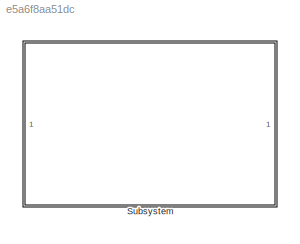
MODEL slx_e5a6f8aa51dc
KIND model
CONFIG AbsTol = auto
CONFIG EnableMultiTasking = off
CONFIG FixedStep = auto
CONFIG MaxStep = auto
CONFIG MinStep = auto
CONFIG RelTol = 1e-3
CONFIG SampleTimeConstraint = Unconstrained
CONFIG SolverName = VariableStepAuto
CONFIG StartTime = 0.0
CONFIG StopTime = 15
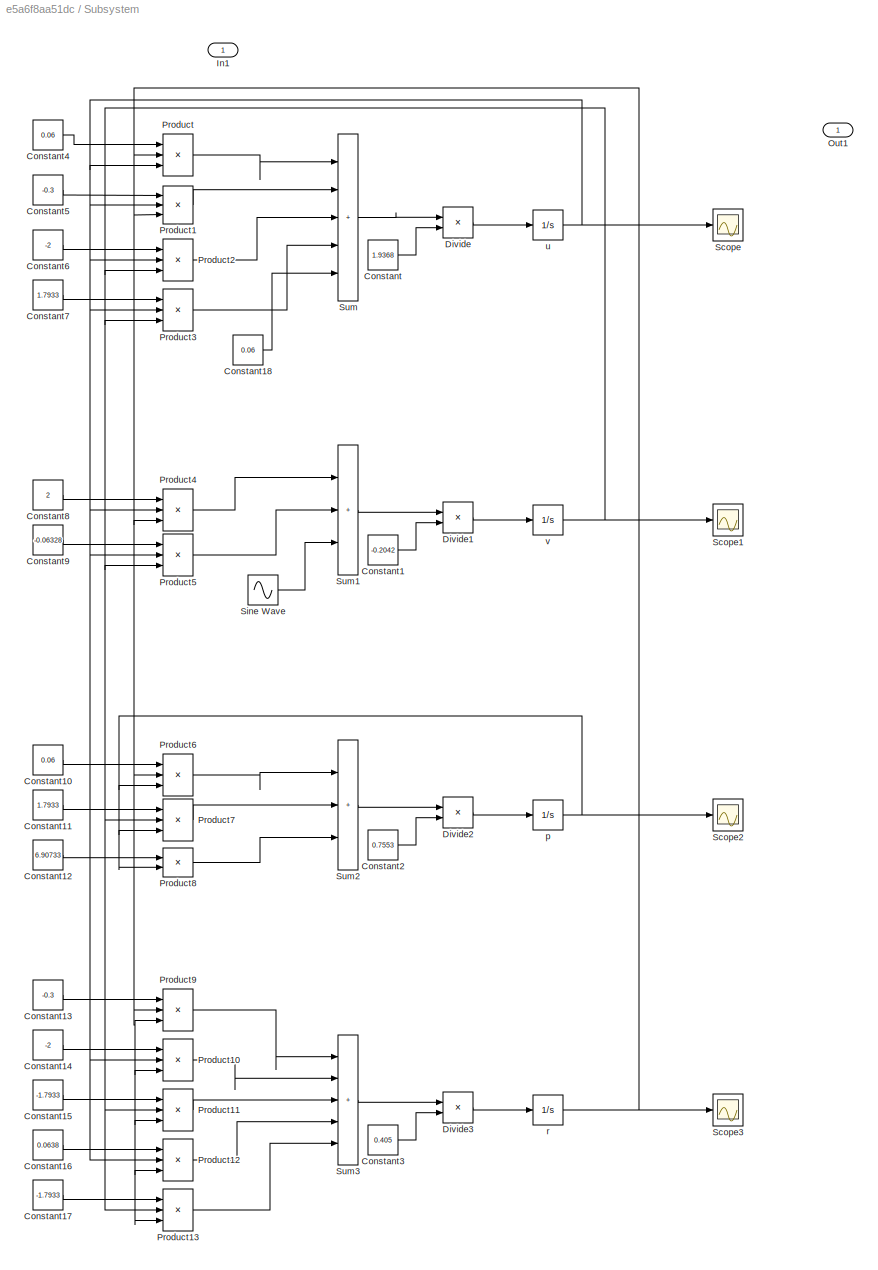
BLOCK [SubSystem] Subsystem
BLOCK [Constant] Subsystem/Constant
  Value = 1.9368
BLOCK [Constant] Subsystem/Constant1
  Value = -0.2042
BLOCK [Constant] Subsystem/Constant10
  Value = 0.06
BLOCK [Constant] Subsystem/Constant11
  Value = 1.7933
BLOCK [Constant] Subsystem/Constant12
  Value = 6.90733
BLOCK [Constant] Subsystem/Constant13
  Value = -0.3
BLOCK [Constant] Subsystem/Constant14
  Value = -2
BLOCK [Constant] Subsystem/Constant15
  Value = -1.7933
BLOCK [Constant] Subsystem/Constant16
  Value = 0.0638
BLOCK [Constant] Subsystem/Constant17
  Value = -1.7933
BLOCK [Constant] Subsystem/Constant18
  Value = 0.06
BLOCK [Constant] Subsystem/Constant2
  Value = 0.7553
BLOCK [Constant] Subsystem/Constant3
  Value = 0.405
BLOCK [Constant] Subsystem/Constant4
  Value = 0.06
BLOCK [Constant] Subsystem/Constant5
  Value = -0.3
BLOCK [Constant] Subsystem/Constant6
  Value = -2
BLOCK [Constant] Subsystem/Constant7
  Value = 1.7933
BLOCK [Constant] Subsystem/Constant8
  Value = 2
BLOCK [Constant] Subsystem/Constant9
  Value = -0.06328
BLOCK [Product] Subsystem/Divide
  Inputs = */
BLOCK [Product] Subsystem/Divide1
  Inputs = */
BLOCK [Product] Subsystem/Divide2
  Inputs = */
BLOCK [Product] Subsystem/Divide3
  Inputs = */
BLOCK [Inport] Subsystem/In1
BLOCK [Outport] Subsystem/Out1
BLOCK [Product] Subsystem/Product
  Inputs = 3
BLOCK [Product] Subsystem/Product1
  Inputs = 3
BLOCK [Product] Subsystem/Product10
  Inputs = 3
BLOCK [Product] Subsystem/Product11
  Inputs = 3
BLOCK [Product] Subsystem/Product12
  Inputs = 3
BLOCK [Product] Subsystem/Product13
  Inputs = 3
BLOCK [Product] Subsystem/Product2
  Inputs = 3
BLOCK [Product] Subsystem/Product3
  Inputs = 3
BLOCK [Product] Subsystem/Product4
  Inputs = 3
BLOCK [Product] Subsystem/Product5
  Inputs = 3
BLOCK [Product] Subsystem/Product6
  Inputs = 3
BLOCK [Product] Subsystem/Product7
  Inputs = 3
BLOCK [Product] Subsystem/Product8
BLOCK [Product] Subsystem/Product9
  Inputs = 3
BLOCK [Scope] Subsystem/Scope
  Floating = off
  NumInputPorts = 1
  ScopeSpecificationString = Simulink.scopes.TimeScopeBlockCfg('CurrentConfiguration', extmgr.ConfigurationSet(extmgr.Configuration('Core','General UI',true,'FigureColor',[1 1 1]),extmgr.Configuration('Core','Source UI',true),extmgr.Configuration('Sources','WiredSimulink',true),extmgr.Configuration('Visuals','Time Domain',true,'SerializedDisplays',{struct('MinYLimReal','-0.06229','MaxYLimReal','0.56058','YLabelReal','','MinYL...<+2037ch>
BLOCK [Scope] Subsystem/Scope1
  Floating = off
  NumInputPorts = 1
  ScopeSpecificationString = Simulink.scopes.TimeScopeBlockCfg('CurrentConfiguration', extmgr.ConfigurationSet(extmgr.Configuration('Core','General UI',true,'FigureColor',[1 1 1]),extmgr.Configuration('Core','Source UI',true),extmgr.Configuration('Sources','WiredSimulink',true,'DataLoggingVariableName','ScopeData1'),extmgr.Configuration('Visuals','Time Domain',true,'SerializedDisplays',{struct('MinYLimReal','-0.20674','MaxYLi...<+2203ch>
BLOCK [Scope] Subsystem/Scope2
  Floating = off
  NumInputPorts = 1
  ScopeSpecificationString = Simulink.scopes.TimeScopeBlockCfg('CurrentConfiguration', extmgr.ConfigurationSet(extmgr.Configuration('Core','General UI',true,'FigureColor',[1 1 1]),extmgr.Configuration('Core','Source UI',true),extmgr.Configuration('Sources','WiredSimulink',true,'DataLoggingVariableName','ScopeData2'),extmgr.Configuration('Visuals','Time Domain',true,'SerializedDisplays',{struct('MinYLimReal','-1.00000','MaxYLi...<+2228ch>
BLOCK [Scope] Subsystem/Scope3
  Floating = off
  NumInputPorts = 1
  ScopeSpecificationString = Simulink.scopes.TimeScopeBlockCfg('CurrentConfiguration', extmgr.ConfigurationSet(extmgr.Configuration('Core','General UI',true,'FigureColor',[1 1 1]),extmgr.Configuration('Core','Source UI',true),extmgr.Configuration('Sources','WiredSimulink',true,'DataLoggingVariableName','ScopeData3'),extmgr.Configuration('Visuals','Time Domain',true,'SerializedDisplays',{struct('MinYLimReal','-1.00000','MaxYLi...<+2228ch>
BLOCK [Sin] Subsystem/Sine Wave
  Amplitude = 0.01
  SampleTime = 0
BLOCK [Sum] Subsystem/Sum
  IconShape = rectangular
  Inputs = |+++++
BLOCK [Sum] Subsystem/Sum1
  IconShape = rectangular
  Inputs = |+++
BLOCK [Sum] Subsystem/Sum2
  IconShape = rectangular
  Inputs = |+++
BLOCK [Sum] Subsystem/Sum3
  IconShape = rectangular
  Inputs = |+++++
BLOCK [Integrator] Subsystem/p
  NameLocation = top
BLOCK [Integrator] Subsystem/r
  NameLocation = top
BLOCK [Integrator] Subsystem/u
  NameLocation = top
BLOCK [Integrator] Subsystem/v
  NameLocation = top
LINE Subsystem/Constant10:1 -> Subsystem/Product6:1
LINE Subsystem/Constant11:1 -> Subsystem/Product7:1
LINE Subsystem/Constant12:1 -> Subsystem/Product8:1
LINE Subsystem/Constant13:1 -> Subsystem/Product9:1
LINE Subsystem/Constant14:1 -> Subsystem/Product10:1
LINE Subsystem/Constant15:1 -> Subsystem/Product11:1
LINE Subsystem/Constant16:1 -> Subsystem/Product12:1
LINE Subsystem/Constant17:1 -> Subsystem/Product13:1
LINE Subsystem/Constant18:1 -> Subsystem/Sum:5
LINE Subsystem/Constant1:1 -> Subsystem/Divide1:2
LINE Subsystem/Constant2:1 -> Subsystem/Divide2:2
LINE Subsystem/Constant3:1 -> Subsystem/Divide3:2
LINE Subsystem/Constant4:1 -> Subsystem/Product:1
LINE Subsystem/Constant5:1 -> Subsystem/Product1:1
LINE Subsystem/Constant6:1 -> Subsystem/Product2:1
LINE Subsystem/Constant7:1 -> Subsystem/Product3:1
LINE Subsystem/Constant8:1 -> Subsystem/Product4:1
LINE Subsystem/Constant9:1 -> Subsystem/Product5:1
LINE Subsystem/Constant:1 -> Subsystem/Divide:2
LINE Subsystem/Divide1:1 -> Subsystem/v:1
LINE Subsystem/Divide2:1 -> Subsystem/p:1
LINE Subsystem/Divide3:1 -> Subsystem/r:1
LINE Subsystem/Divide:1 -> Subsystem/u:1
LINE Subsystem/Product10:1 -> Subsystem/Sum3:2
LINE Subsystem/Product11:1 -> Subsystem/Sum3:3
LINE Subsystem/Product12:1 -> Subsystem/Sum3:4
LINE Subsystem/Product13:1 -> Subsystem/Sum3:5
LINE Subsystem/Product1:1 -> Subsystem/Sum:2
LINE Subsystem/Product2:1 -> Subsystem/Sum:3
LINE Subsystem/Product3:1 -> Subsystem/Sum:4
LINE Subsystem/Product4:1 -> Subsystem/Sum1:1
LINE Subsystem/Product5:1 -> Subsystem/Sum1:2
LINE Subsystem/Product6:1 -> Subsystem/Sum2:1
LINE Subsystem/Product7:1 -> Subsystem/Sum2:2
LINE Subsystem/Product8:1 -> Subsystem/Sum2:3
LINE Subsystem/Product9:1 -> Subsystem/Sum3:1
LINE Subsystem/Product:1 -> Subsystem/Sum:1
LINE Subsystem/Sine Wave:1 -> Subsystem/Sum1:3
LINE Subsystem/Sum1:1 -> Subsystem/Divide1:1
LINE Subsystem/Sum2:1 -> Subsystem/Divide2:1
LINE Subsystem/Sum3:1 -> Subsystem/Divide3:1
LINE Subsystem/Sum:1 -> Subsystem/Divide:1
NET Subsystem/p:1 -> Subsystem/Product6:3, Subsystem/Product7:3, Subsystem/Product8:2, Subsystem/Scope2:1
NET Subsystem/r:1 -> Subsystem/Product10:3, Subsystem/Product11:3, Subsystem/Product12:3, Subsystem/Product13:3, Subsystem/Product1:3, Subsystem/Product4:3, Subsystem/Product6:2, Subsystem/Product9:2, Subsystem/Product9:3, Subsystem/Product:2, Subsystem/Scope3:1
NET Subsystem/u:1 -> Subsystem/Product10:2, Subsystem/Product12:2, Subsystem/Product1:2, Subsystem/Product2:2, Subsystem/Product3:2, Subsystem/Product4:2, Subsystem/Product5:2, Subsystem/Product:3, Subsystem/Scope:1
NET Subsystem/v:1 -> Subsystem/Product11:2, Subsystem/Product13:2, Subsystem/Product2:3, Subsystem/Product3:3, Subsystem/Product5:3, Subsystem/Product7:2, Subsystem/Scope1:1
note: NET lines group one-source signal fan-out (src -> all destinations, sorted); 1:1 wires keep LINE
